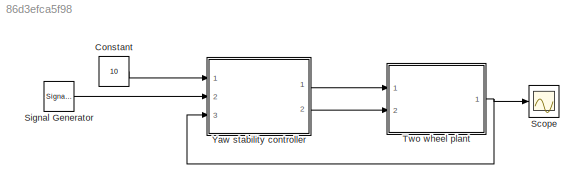
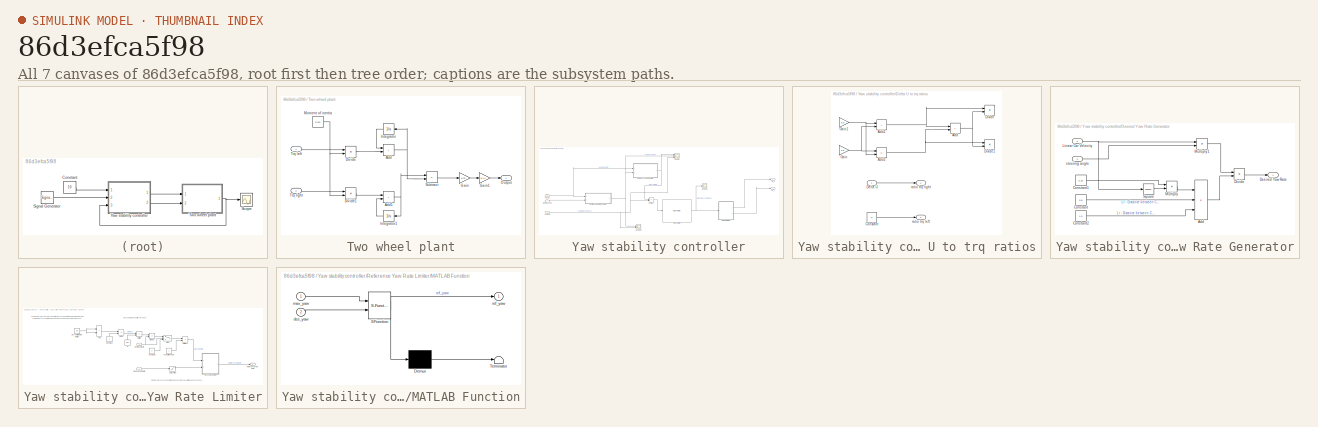
[diagram: thumbnail index - all 7 canvases of the model, root first then tree order]
MODEL slx_86d3efca5f98
KIND model
CONFIG AbsTol = auto
CONFIG EnableMultiTasking = off
CONFIG FixedStep = auto
CONFIG MaxStep = auto
CONFIG MinStep = auto
CONFIG RelTol = 1e-3
CONFIG SampleTimeConstraint = Unconstrained
CONFIG SolverName = VariableStepAuto
CONFIG StartTime = 0.0
CONFIG StopTime = 10.0
BLOCK [Constant] Constant
  Value = 10
BLOCK [Scope] Scope
  Floating = off
  NumInputPorts = 1
  Ports = [1]
  ScopeSpecificationString = Simulink.scopes.TimeScopeBlockCfg('CurrentConfiguration', extmgr.ConfigurationSet(extmgr.Configuration('Core','General UI',true),extmgr.Configuration('Core','Source UI',true),extmgr.Configuration('Sources','WiredSimulink',true,'DataLoggingVariableName','ScopeData1'),extmgr.Configuration('Visuals','Time Domain',true,'SerializedDisplays',{struct('MinYLimReal','-0.9945','MaxYLimReal','0.99365','YLabe...<+1412ch>
BLOCK [SignalGenerator] Signal Generator
  Amplitude = 2
  Ports = [0, 1]
  Units = rad/sec
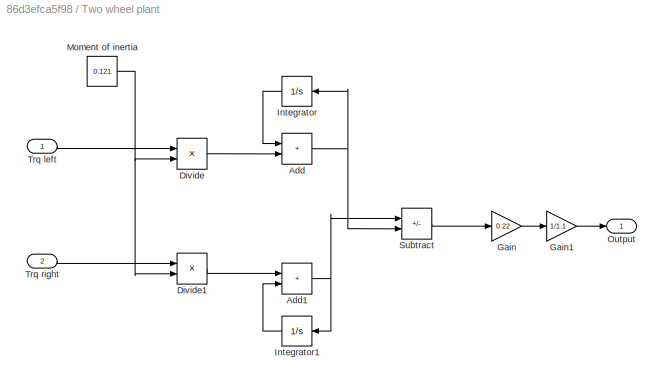
BLOCK [SubSystem] Two wheel plant
  Ports = [2, 1]
  RequestExecContextInheritance = off
BLOCK [Sum] Two wheel plant/Add
  IconShape = rectangular
  Ports = [2, 1]
BLOCK [Sum] Two wheel plant/Add1
  IconShape = rectangular
  Ports = [2, 1]
BLOCK [Product] Two wheel plant/Divide
  Inputs = */
  Ports = [2, 1]
BLOCK [Product] Two wheel plant/Divide1
  Inputs = */
  Ports = [2, 1]
BLOCK [Gain] Two wheel plant/Gain
  Gain = 0.22
BLOCK [Gain] Two wheel plant/Gain1
  Gain = 1/1.1
BLOCK [Integrator] Two wheel plant/Integrator
  Ports = [1, 1]
BLOCK [Integrator] Two wheel plant/Integrator1
  Ports = [1, 1]
BLOCK [Constant] Two wheel plant/Moment of inertia
  Value = 0.121
BLOCK [Outport] Two wheel plant/Output
BLOCK [Sum] Two wheel plant/Subtract
  IconShape = rectangular
  Inputs = +-
  Ports = [2, 1]
BLOCK [Inport] Two wheel plant/Trq left
BLOCK [Inport] Two wheel plant/Trq right
  Port = 2
BLOCK [SubSystem] Yaw stability controller
  Ports = [3, 2]
  RequestExecContextInheritance = off
BLOCK [SubSystem] Yaw stability controller/Delta U to trq ratios
  Ports = [1, 2]
  RequestExecContextInheritance = off
BLOCK [Outport] Yaw stability controller/Delta U to trq ratios/ ratio trq right
BLOCK [Sum] Yaw stability controller/Delta U to trq ratios/Add
  IconShape = rectangular
  Ports = [2, 1]
BLOCK [Sum] Yaw stability controller/Delta U to trq ratios/Add1
  IconShape = rectangular
  Ports = [2, 1]
BLOCK [Sum] Yaw stability controller/Delta U to trq ratios/Add2
  IconShape = rectangular
  Inputs = +-
  Ports = [2, 1]
BLOCK [Constant] Yaw stability controller/Delta U to trq ratios/Constant
  Value = 0
BLOCK [Inport] Yaw stability controller/Delta U to trq ratios/Delta U
BLOCK [Product] Yaw stability controller/Delta U to trq ratios/Divide
  Inputs = */
  Ports = [2, 1]
BLOCK [Product] Yaw stability controller/Delta U to trq ratios/Divide1
  Inputs = */
  Ports = [2, 1]
BLOCK [Gain] Yaw stability controller/Delta U to trq ratios/Gain
  Gain = 0.5
BLOCK [Gain] Yaw stability controller/Delta U to trq ratios/Gain1
  Gain = 0.5
BLOCK [Outport] Yaw stability controller/Delta U to trq ratios/ratio trq left
  Port = 2
BLOCK [SubSystem] Yaw stability controller/Desired Yaw Rate Generator
  Ports = [2, 1]
  RequestExecContextInheritance = off
BLOCK [Sum] Yaw stability controller/Desired Yaw Rate Generator/Add
  IconShape = rectangular
  Inputs = +++
  Ports = [3, 1]
BLOCK [Constant] Yaw stability controller/Desired Yaw Rate Generator/Constant
  Value = 0.8
BLOCK [Constant] Yaw stability controller/Desired Yaw Rate Generator/Constant1
  Value = 0.15
BLOCK [Constant] Yaw stability controller/Desired Yaw Rate Generator/Constant2
  Value = 1.0
BLOCK [Outport] Yaw stability controller/Desired Yaw Rate Generator/Desired Yaw Rate
  VectorParamsAs1DForOutWhenUnconnected = off
BLOCK [Product] Yaw stability controller/Desired Yaw Rate Generator/Divide
  Inputs = */
  Ports = [2, 1]
BLOCK [Inport] Yaw stability controller/Desired Yaw Rate Generator/Linear Car Velocity
BLOCK [Product] Yaw stability controller/Desired Yaw Rate Generator/Multiply
  Ports = [2, 1]
BLOCK [Product] Yaw stability controller/Desired Yaw Rate Generator/Multiply1
  Ports = [2, 1]
BLOCK [Math] Yaw stability controller/Desired Yaw Rate Generator/Square
  Operator = square
  Ports = [1, 1]
  SignedPower = on
BLOCK [Inport] Yaw stability controller/Desired Yaw Rate Generator/steering angle
  Port = 2
BLOCK [Reference] Yaw stability controller/PID Controller   REF=pid_lib/PID Controller
  Ports = [1, 1]
  SourceBlock = pid_lib/PID Controller
  SourceProductBaseCode = SL
  SourceType = PID 1dof
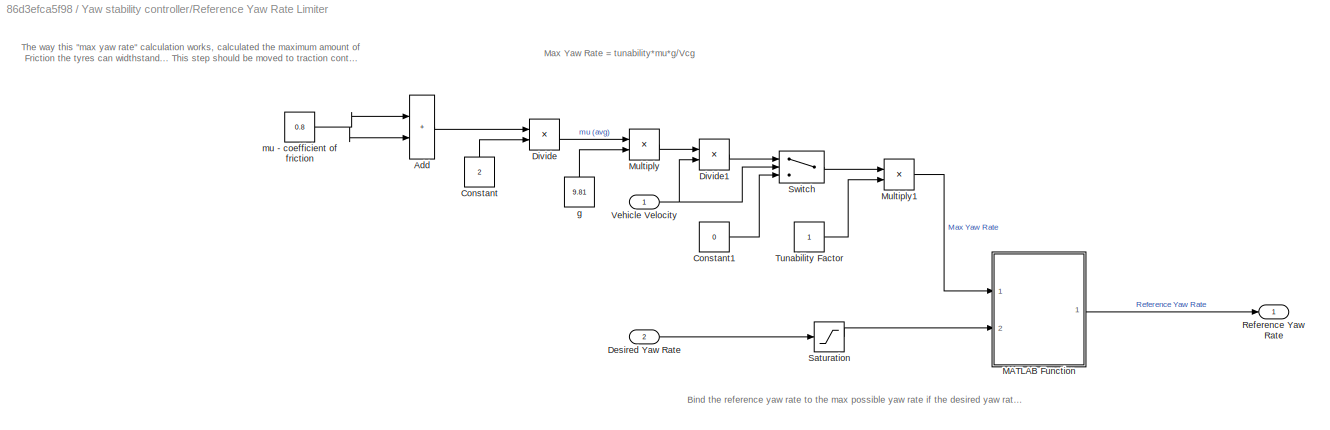
BLOCK [SubSystem] Yaw stability controller/Reference Yaw Rate Limiter
  Ports = [2, 1]
  RequestExecContextInheritance = off
BLOCK [Sum] Yaw stability controller/Reference Yaw Rate Limiter/Add
  IconShape = rectangular
  Ports = [2, 1]
BLOCK [Constant] Yaw stability controller/Reference Yaw Rate Limiter/Constant
  NameLocation = right
  Value = 2
BLOCK [Constant] Yaw stability controller/Reference Yaw Rate Limiter/Constant1
  Value = 0
BLOCK [Inport] Yaw stability controller/Reference Yaw Rate Limiter/Desired Yaw Rate
  Port = 2
BLOCK [Product] Yaw stability controller/Reference Yaw Rate Limiter/Divide
  Inputs = */
  Ports = [2, 1]
BLOCK [Product] Yaw stability controller/Reference Yaw Rate Limiter/Divide1
  Inputs = */
  Ports = [2, 1]
BLOCK [SubSystem] Yaw stability controller/Reference Yaw Rate Limiter/MATLAB Function
  ErrorFcn = Stateflow.Translate.translate
  PermitHierarchicalResolution = ExplicitOnly
  Ports = [2, 1]
  RequestExecContextInheritance = off
  SFBlockType = MATLAB Function
  TreatAsAtomicUnit = on
BLOCK [Demux] Yaw stability controller/Reference Yaw Rate Limiter/MATLAB Function/ Demux 
  Outputs = 1
  Ports = [1, 1]
BLOCK [S-Function] Yaw stability controller/Reference Yaw Rate Limiter/MATLAB Function/ SFunction 
  EnableBusSupport = on
  FunctionName = sf_sfun
  PortCounts = [2 2]
  Ports = [2, 2]
  SFcnIsStateOwnerBlock = off
  SFunctionDeploymentMode = off
  Tag = Stateflow S-Function 2
BLOCK [Terminator] Yaw stability controller/Reference Yaw Rate Limiter/MATLAB Function/ Terminator 
BLOCK [Inport] Yaw stability controller/Reference Yaw Rate Limiter/MATLAB Function/des_yaw
  Port = 2
BLOCK [Inport] Yaw stability controller/Reference Yaw Rate Limiter/MATLAB Function/max_yaw
BLOCK [Outport] Yaw stability controller/Reference Yaw Rate Limiter/MATLAB Function/ref_yaw
  VectorParamsAs1DForOutWhenUnconnected = off
BLOCK [Product] Yaw stability controller/Reference Yaw Rate Limiter/Multiply
  Ports = [2, 1]
BLOCK [Product] Yaw stability controller/Reference Yaw Rate Limiter/Multiply1
  Ports = [2, 1]
BLOCK [Outport] Yaw stability controller/Reference Yaw Rate Limiter/Reference Yaw Rate
  VectorParamsAs1DForOutWhenUnconnected = off
BLOCK [Saturate] Yaw stability controller/Reference Yaw Rate Limiter/Saturation
  LowerLimit = -10
  UpperLimit = 10
BLOCK [Switch] Yaw stability controller/Reference Yaw Rate Limiter/Switch
  Criteria = u2 > Threshold
  InputSameDT = off
  SaturateOnIntegerOverflow = off
  Threshold = 1
BLOCK [Constant] Yaw stability controller/Reference Yaw Rate Limiter/Tunability Factor
BLOCK [Inport] Yaw stability controller/Reference Yaw Rate Limiter/Vehicle Velocity
BLOCK [Constant] Yaw stability controller/Reference Yaw Rate Limiter/g
  NameLocation = left
  Value = 9.81
BLOCK [Constant] Yaw stability controller/Reference Yaw Rate Limiter/mu - coefficient of friction
  Value = 0.8
BLOCK [Scope] Yaw stability controller/Scope
  Floating = off
  NumInputPorts = 3
  Ports = [3]
  ScopeSpecificationString = Simulink.scopes.TimeScopeBlockCfg('CurrentConfiguration', extmgr.ConfigurationSet(extmgr.Configuration('Core','General UI',true),extmgr.Configuration('Core','Source UI',true),extmgr.Configuration('Sources','WiredSimulink',true,'DataLoggingVariableName','ScopeData2'),extmgr.Configuration('Visuals','Time Domain',true,'SerializedDisplays',{struct('MinYLimReal','-1.48806','MaxYLimReal','1.48809','YLab...<+1495ch>
BLOCK [Scope] Yaw stability controller/Scope1
  Floating = off
  NumInputPorts = 1
  Ports = [1]
  ScopeSpecificationString = Simulink.scopes.TimeScopeBlockCfg('CurrentConfiguration', extmgr.ConfigurationSet(extmgr.Configuration('Core','General UI',true),extmgr.Configuration('Core','Source UI',true),extmgr.Configuration('Sources','WiredSimulink',true,'DataLoggingVariableName','ScopeData3'),extmgr.Configuration('Visuals','Time Domain',true,'SerializedDisplays',{struct('MinYLimReal','-3.89712','MaxYLimReal','1.03515','YLab...<+1408ch>
BLOCK [Scope] Yaw stability controller/Scope2
  Floating = off
  NumInputPorts = 2
  Ports = [2]
  ScopeSpecificationString = Simulink.scopes.TimeScopeBlockCfg('CurrentConfiguration', extmgr.ConfigurationSet(extmgr.Configuration('Core','General UI',true),extmgr.Configuration('Core','Source UI',true),extmgr.Configuration('Sources','WiredSimulink',true,'DataLoggingVariableName','ScopeData2'),extmgr.Configuration('Visuals','Time Domain',true,'SerializedDisplays',{struct('MinYLimReal','-1.48806','MaxYLimReal','1.48809','YLab...<+1435ch>
BLOCK [Inport] Yaw stability controller/Steering Angle
  Port = 2
BLOCK [Sum] Yaw stability controller/Subtract
  IconShape = rectangular
  Inputs = +-
  Ports = [2, 1]
BLOCK [Outport] Yaw stability controller/Trq_L
BLOCK [Outport] Yaw stability controller/Trq_R
  Port = 2
BLOCK [Inport] Yaw stability controller/Velocity
  ClipboardFcn = set_param(gcb,'BackgroundColor','red');
BLOCK [Inport] Yaw stability controller/Yaw Rate
  Port = 3
ANNOTATION Yaw stability controller/Reference Yaw Rate Limiter: Bind the reference yaw rate to the max possible yaw rate if the desired yaw rate is more than the max yaw rate possible
ANNOTATION Yaw stability controller/Reference Yaw Rate Limiter: Max Yaw Rate = tunability*mu*g/Vcg
ANNOTATION Yaw stability controller/Reference Yaw Rate Limiter: The way this "max yaw rate" calculation works, calculated the maximum amount of Friction the tyres can widthstand... This step should be moved to traction control
LINE Constant:1 -> Yaw stability controller:1
LINE Signal Generator:1 -> Yaw stability controller:2
NET Two wheel plant/Add1:1 -> Two wheel plant/Integrator1:1, Two wheel plant/Subtract:1
NET Two wheel plant/Add:1 -> Two wheel plant/Integrator:1, Two wheel plant/Subtract:2
LINE Two wheel plant/Divide1:1 -> Two wheel plant/Add1:1
LINE Two wheel plant/Divide:1 -> Two wheel plant/Add:2
LINE Two wheel plant/Gain1:1 -> Two wheel plant/Output:1
LINE Two wheel plant/Gain:1 -> Two wheel plant/Gain1:1
LINE Two wheel plant/Integrator1:1 -> Two wheel plant/Add1:2
LINE Two wheel plant/Integrator:1 -> Two wheel plant/Add:1
NET Two wheel plant/Moment of inertia:1 -> Two wheel plant/Divide1:2, Two wheel plant/Divide:2
LINE Two wheel plant/Subtract:1 -> Two wheel plant/Gain:1
LINE Two wheel plant/Trq left:1 -> Two wheel plant/Divide:1
LINE Two wheel plant/Trq right:1 -> Two wheel plant/Divide1:1
NET Two wheel plant:1 -> Scope:1, Yaw stability controller:3
NET Yaw stability controller/Delta U to trq ratios/Add1:1 -> Yaw stability controller/Delta U to trq ratios/Add:1, Yaw stability controller/Delta U to trq ratios/Divide:1
NET Yaw stability controller/Delta U to trq ratios/Add2:1 -> Yaw stability controller/Delta U to trq ratios/Add:2, Yaw stability controller/Delta U to trq ratios/Divide1:1
NET Yaw stability controller/Delta U to trq ratios/Add:1 -> Yaw stability controller/Delta U to trq ratios/Divide1:2, Yaw stability controller/Delta U to trq ratios/Divide:2
LINE Yaw stability controller/Delta U to trq ratios/Constant:1 -> Yaw stability controller/Delta U to trq ratios/ratio trq left:1
LINE Yaw stability controller/Delta U to trq ratios/Delta U:1 -> Yaw stability controller/Delta U to trq ratios/ ratio trq right:1
NET Yaw stability controller/Delta U to trq ratios/Gain1:1 -> Yaw stability controller/Delta U to trq ratios/Add1:1, Yaw stability controller/Delta U to trq ratios/Add2:2
NET Yaw stability controller/Delta U to trq ratios/Gain:1 -> Yaw stability controller/Delta U to trq ratios/Add1:2, Yaw stability controller/Delta U to trq ratios/Add2:1
LINE Yaw stability controller/Delta U to trq ratios:1 -> Yaw stability controller/Trq_R:1
LINE Yaw stability controller/Delta U to trq ratios:2 -> Yaw stability controller/Trq_L:1
LINE Yaw stability controller/Desired Yaw Rate Generator/Add:1 -> Yaw stability controller/Desired Yaw Rate Generator/Divide:2
LINE Yaw stability controller/Desired Yaw Rate Generator/Constant1:1 -> Yaw stability controller/Desired Yaw Rate Generator/Multiply:1
LINE Yaw stability controller/Desired Yaw Rate Generator/Constant2:1 -> Yaw stability controller/Desired Yaw Rate Generator/Add:3
LINE Yaw stability controller/Desired Yaw Rate Generator/Constant:1 -> Yaw stability controller/Desired Yaw Rate Generator/Add:2
LINE Yaw stability controller/Desired Yaw Rate Generator/Divide:1 -> Yaw stability controller/Desired Yaw Rate Generator/Desired Yaw Rate:1
NET Yaw stability controller/Desired Yaw Rate Generator/Linear Car Velocity:1 -> Yaw stability controller/Desired Yaw Rate Generator/Multiply1:1, Yaw stability controller/Desired Yaw Rate Generator/Square:1
LINE Yaw stability controller/Desired Yaw Rate Generator/Multiply1:1 -> Yaw stability controller/Desired Yaw Rate Generator/Divide:1
LINE Yaw stability controller/Desired Yaw Rate Generator/Multiply:1 -> Yaw stability controller/Desired Yaw Rate Generator/Add:1
LINE Yaw stability controller/Desired Yaw Rate Generator/Square:1 -> Yaw stability controller/Desired Yaw Rate Generator/Multiply:2
LINE Yaw stability controller/Desired Yaw Rate Generator/steering angle:1 -> Yaw stability controller/Desired Yaw Rate Generator/Multiply1:2
NET Yaw stability controller/Desired Yaw Rate Generator:1 -> Yaw stability controller/Reference Yaw Rate Limiter:2, Yaw stability controller/Scope2:1, Yaw stability controller/Scope:2
NET Yaw stability controller/PID Controller :1 -> Yaw stability controller/Delta U to trq ratios:1, Yaw stability controller/Scope1:1
LINE Yaw stability controller/Reference Yaw Rate Limiter/Add:1 -> Yaw stability controller/Reference Yaw Rate Limiter/Divide:1
LINE Yaw stability controller/Reference Yaw Rate Limiter/Constant1:1 -> Yaw stability controller/Reference Yaw Rate Limiter/Switch:3
LINE Yaw stability controller/Reference Yaw Rate Limiter/Constant:1 -> Yaw stability controller/Reference Yaw Rate Limiter/Divide:2
LINE Yaw stability controller/Reference Yaw Rate Limiter/Desired Yaw Rate:1 -> Yaw stability controller/Reference Yaw Rate Limiter/Saturation:1
LINE Yaw stability controller/Reference Yaw Rate Limiter/Divide1:1 -> Yaw stability controller/Reference Yaw Rate Limiter/Switch:1
LINE Yaw stability controller/Reference Yaw Rate Limiter/Divide:1 -> Yaw stability controller/Reference Yaw Rate Limiter/Multiply:1
LINE Yaw stability controller/Reference Yaw Rate Limiter/MATLAB Function:1 -> Yaw stability controller/Reference Yaw Rate Limiter/Reference Yaw Rate:1
LINE Yaw stability controller/Reference Yaw Rate Limiter/Multiply1:1 -> Yaw stability controller/Reference Yaw Rate Limiter/MATLAB Function:1
LINE Yaw stability controller/Reference Yaw Rate Limiter/Multiply:1 -> Yaw stability controller/Reference Yaw Rate Limiter/Divide1:1
LINE Yaw stability controller/Reference Yaw Rate Limiter/Saturation:1 -> Yaw stability controller/Reference Yaw Rate Limiter/MATLAB Function:2
LINE Yaw stability controller/Reference Yaw Rate Limiter/Switch:1 -> Yaw stability controller/Reference Yaw Rate Limiter/Multiply1:1
LINE Yaw stability controller/Reference Yaw Rate Limiter/Tunability Factor:1 -> Yaw stability controller/Reference Yaw Rate Limiter/Multiply1:2
NET Yaw stability controller/Reference Yaw Rate Limiter/Vehicle Velocity:1 -> Yaw stability controller/Reference Yaw Rate Limiter/Divide1:2, Yaw stability controller/Reference Yaw Rate Limiter/Switch:2
LINE Yaw stability controller/Reference Yaw Rate Limiter/g:1 -> Yaw stability controller/Reference Yaw Rate Limiter/Multiply:2
NET Yaw stability controller/Reference Yaw Rate Limiter/mu - coefficient of friction:1 -> Yaw stability controller/Reference Yaw Rate Limiter/Add:1, Yaw stability controller/Reference Yaw Rate Limiter/Add:2
NET Yaw stability controller/Reference Yaw Rate Limiter:1 -> Yaw stability controller/Scope:1, Yaw stability controller/Subtract:1
LINE Yaw stability controller/Steering Angle:1 -> Yaw stability controller/Desired Yaw Rate Generator:2
LINE Yaw stability controller/Subtract:1 -> Yaw stability controller/PID Controller :1
NET Yaw stability controller/Velocity:1 -> Yaw stability controller/Desired Yaw Rate Generator:1, Yaw stability controller/Reference Yaw Rate Limiter:1
NET Yaw stability controller/Yaw Rate:1 -> Yaw stability controller/Scope2:2, Yaw stability controller/Scope:3, Yaw stability controller/Subtract:2
LINE Yaw stability controller:1 -> Two wheel plant:1
LINE Yaw stability controller:2 -> Two wheel plant:2
note: NET lines group one-source signal fan-out (src -> all destinations, sorted); 1:1 wires keep LINE
CHART Yaw stability controller/Reference Yaw Rate Limiter/MATLAB Function states=1 transitions=1
  STATE_LABEL 'eML_blk_kernel()'
  STATE_LABEL 'SCRIPT:\nfunction ref_yaw = fcn(max_yaw, des_yaw)\n    if abs(des_yaw) > max_yaw\n        if des_yaw >= 0\n            ref_yaw = max_yaw;\n        else\n            ref_yaw = -max_yaw;\n        end      \n    else \n        ref_yaw = des_yaw;\n    end\n'
CHART  states=0 transitions=0
